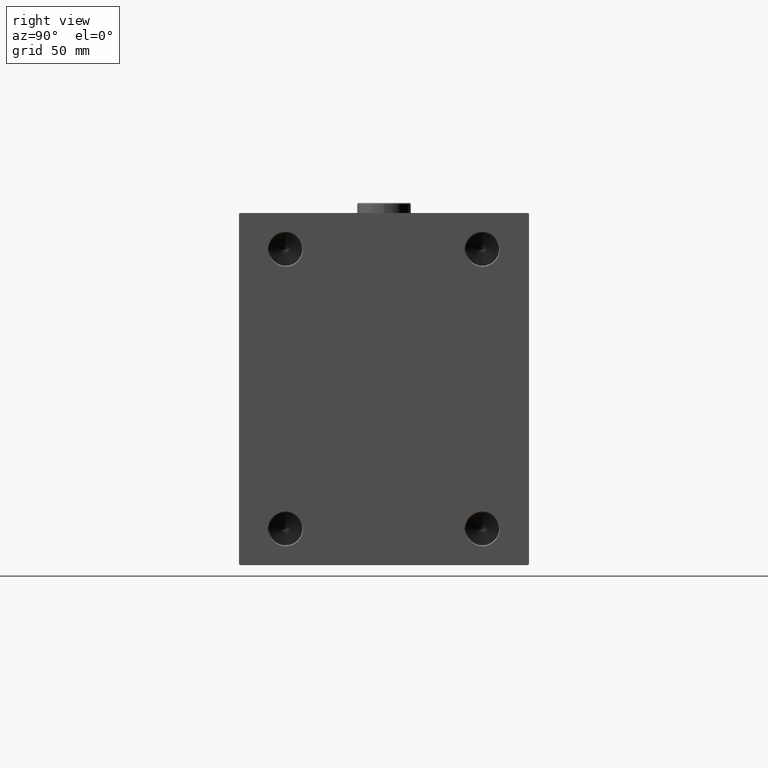
[diagram: clean part render]
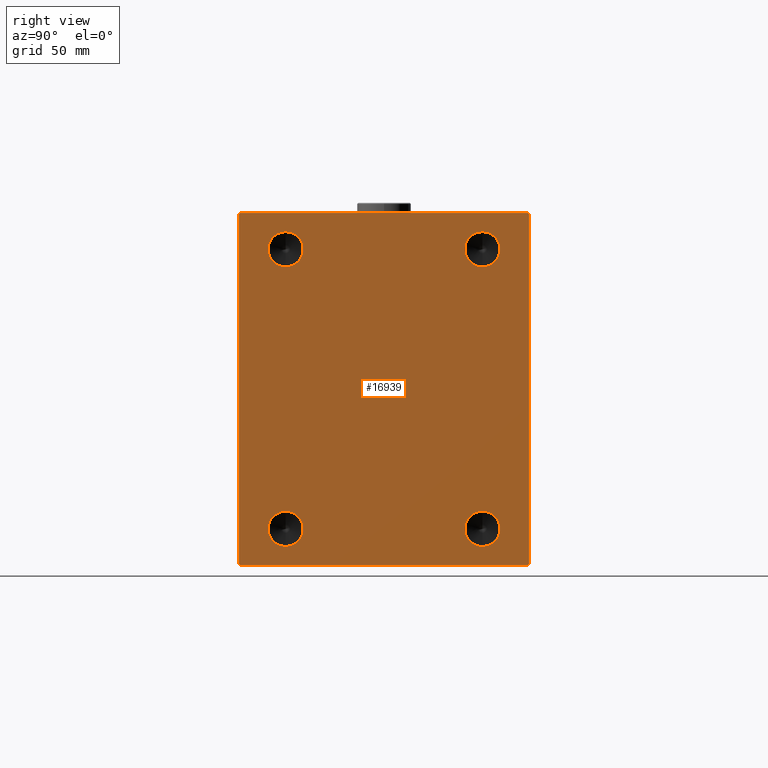
[diagram: same view with one face highlighted and labeled with its STEP entity id]
A machine part, right view. The second image highlights one B-rep face of the part: STEP entity #16939.
In plain terms, the highlighted planar face has unit normal (1, 0, 0).
Its self-contained STEP definition (entity closure, byte-faithful):
#275 = CARTESIAN_POINT ( 'NONE',  ( 185.0000000000000000, -47.50000000000000000, 58.99999999999997158 ) ) ;
#325 = FACE_BOUND ( 'NONE', #21738, .T. ) ;
#710 = EDGE_CURVE ( 'NONE', #22719, #43321, #39456, .T. ) ;
#868 = EDGE_CURVE ( 'NONE', #2538, #43721, #6301, .T. ) ;
#1015 = DIRECTION ( 'NONE',  ( 0.000000000000000000, 0.000000000000000000, -1.000000000000000000 ) ) ;
#1037 = DIRECTION ( 'NONE',  ( 1.000000000000000000, -0.000000000000000000, -0.000000000000000000 ) ) ;
#1204 = VERTEX_POINT ( 'NONE', #25606 ) ;
#1505 = CARTESIAN_POINT ( 'NONE',  ( 185.0000000000000000, -77.25000000000292744, -77.24999999999650413 ) ) ;
#1670 = VERTEX_POINT ( 'NONE', #30982 ) ;
#1870 = LINE ( 'NONE', #47128, #24015 ) ;
#1943 = LINE ( 'NONE', #35274, #28924 ) ;
#1977 = EDGE_LOOP ( 'NONE', ( #15968, #22177, #20051, #42815, #16108, #17164, #7569, #17387 ) ) ;
#1981 = VECTOR ( 'NONE', #2870, 1000.000000000000000 ) ;
#2402 = VERTEX_POINT ( 'NONE', #31312 ) ;
#2508 = CARTESIAN_POINT ( 'NONE',  ( 185.0000000000000000, 70.00000000000000000, 84.50000000000008527 ) ) ;
#2538 = VERTEX_POINT ( 'NONE', #3475 ) ;
#2633 = CARTESIAN_POINT ( 'NONE',  ( 185.0000000000000000, 77.24999999999712941, -77.25000000000355271 ) ) ;
#2670 = DIRECTION ( 'NONE',  ( 0.000000000000000000, 0.000000000000000000, -1.000000000000000000 ) ) ;
#2854 = CARTESIAN_POINT ( 'NONE',  ( 185.0000000000000000, -47.50000000000000000, -59.00000000000000000 ) ) ;
#2870 = DIRECTION ( 'NONE',  ( -0.000000000000000000, 0.7071067811865769936, 0.7071067811865181518 ) ) ;
#2984 = VERTEX_POINT ( 'NONE', #42513 ) ;
#3425 = EDGE_CURVE ( 'NONE', #43321, #22719, #24224, .T. ) ;
#3475 = CARTESIAN_POINT ( 'NONE',  ( 185.0000000000000000, 69.50000000000005684, 85.00000000000001421 ) ) ;
#3581 = VECTOR ( 'NONE', #42946, 1000.000000000000000 ) ;
#4050 = EDGE_CURVE ( 'NONE', #40222, #37802, #28320, .T. ) ;
#4180 = EDGE_CURVE ( 'NONE', #37167, #2402, #25738, .T. ) ;
#5647 = AXIS2_PLACEMENT_3D ( 'NONE', #30783, #45406, #9212 ) ;
#5681 = ORIENTED_EDGE ( 'NONE', *, *, #4180, .F. ) ;
#6151 = DIRECTION ( 'NONE',  ( 1.000000000000000000, -0.000000000000000000, -0.000000000000000000 ) ) ;
#6301 = LINE ( 'NONE', #14865, #34876 ) ;
#6391 = ORIENTED_EDGE ( 'NONE', *, *, #710, .F. ) ;
#6636 = EDGE_CURVE ( 'NONE', #21917, #7199, #26612, .T. ) ;
#6980 = CARTESIAN_POINT ( 'NONE',  ( 185.0000000000000000, -70.00000000000000000, -85.00000000000000000 ) ) ;
#7199 = VERTEX_POINT ( 'NONE', #37276 ) ;
#7534 = EDGE_CURVE ( 'NONE', #11311, #38430, #9018, .T. ) ;
#7569 = ORIENTED_EDGE ( 'NONE', *, *, #18831, .T. ) ;
#7725 = EDGE_CURVE ( 'NONE', #2984, #40222, #27606, .T. ) ;
#7744 = FACE_BOUND ( 'NONE', #43342, .T. ) ;
#8451 = DIRECTION ( 'NONE',  ( -0.000000000000000000, 0.7071067811865181518, -0.7071067811865769936 ) ) ;
#8729 = EDGE_CURVE ( 'NONE', #1670, #2984, #43871, .T. ) ;
#8779 = ORIENTED_EDGE ( 'NONE', *, *, #7534, .F. ) ;
#9018 = CIRCLE ( 'NONE', #16680, 8.500000000000035527 ) ;
#9212 = DIRECTION ( 'NONE',  ( 0.000000000000000000, 0.000000000000000000, -1.000000000000000000 ) ) ;
#10299 = LINE ( 'NONE', #43849, #45217 ) ;
#11017 = DIRECTION ( 'NONE',  ( 0.000000000000000000, 0.000000000000000000, -1.000000000000000000 ) ) ;
#11200 = AXIS2_PLACEMENT_3D ( 'NONE', #14383, #29008, #45950 ) ;
#11311 = VERTEX_POINT ( 'NONE', #40379 ) ;
#11800 = DIRECTION ( 'NONE',  ( 1.000000000000000000, -0.000000000000000000, -0.000000000000000000 ) ) ;
#12755 = DIRECTION ( 'NONE',  ( 0.000000000000000000, 0.000000000000000000, -1.000000000000000000 ) ) ;
#14340 = AXIS2_PLACEMENT_3D ( 'NONE', #20881, #29646, #2670 ) ;
#14383 = CARTESIAN_POINT ( 'NONE',  ( 185.0000000000000000, -47.50000000000000000, 67.49999999999998579 ) ) ;
#14865 = CARTESIAN_POINT ( 'NONE',  ( 185.0000000000000000, 70.00000000000000000, 85.00000000000001421 ) ) ;
#15968 = ORIENTED_EDGE ( 'NONE', *, *, #868, .T. ) ;
#16108 = ORIENTED_EDGE ( 'NONE', *, *, #4050, .T. ) ;
#16121 = ORIENTED_EDGE ( 'NONE', *, *, #6636, .F. ) ;
#16346 = CARTESIAN_POINT ( 'NONE',  ( 185.0000000000000000, 47.50000000000000000, -67.50000000000001421 ) ) ;
#16680 = AXIS2_PLACEMENT_3D ( 'NONE', #30010, #1037, #36976 ) ;
#16765 = LINE ( 'NONE', #2633, #1981 ) ;
#16939 = ADVANCED_FACE ( 'NONE', ( #325, #28831, #7744, #39874, #29779 ), #21638, .T. ) ;
#17164 = ORIENTED_EDGE ( 'NONE', *, *, #32280, .T. ) ;
#17387 = ORIENTED_EDGE ( 'NONE', *, *, #26919, .T. ) ;
#18831 = EDGE_CURVE ( 'NONE', #1204, #22395, #10299, .T. ) ;
#18859 = EDGE_LOOP ( 'NONE', ( #19570, #5681 ) ) ;
#19323 = CARTESIAN_POINT ( 'NONE',  ( 185.0000000000000000, 47.50000000000000000, 76.00000000000001421 ) ) ;
#19570 = ORIENTED_EDGE ( 'NONE', *, *, #23044, .F. ) ;
#20051 = ORIENTED_EDGE ( 'NONE', *, *, #8729, .T. ) ;
#20264 = ORIENTED_EDGE ( 'NONE', *, *, #41434, .F. ) ;
#20282 = CARTESIAN_POINT ( 'NONE',  ( 185.0000000000000000, 47.50000000000000000, -76.00000000000004263 ) ) ;
#20692 = AXIS2_PLACEMENT_3D ( 'NONE', #21871, #36512, #44409 ) ;
#20759 = DIRECTION ( 'NONE',  ( 0.000000000000000000, 0.000000000000000000, -1.000000000000000000 ) ) ;
#20881 = CARTESIAN_POINT ( 'NONE',  ( 185.0000000000000000, -47.50000000000000000, -67.50000000000001421 ) ) ;
#21332 = CARTESIAN_POINT ( 'NONE',  ( 185.0000000000000000, 69.50000000000000000, -85.00000000000000000 ) ) ;
#21342 = DIRECTION ( 'NONE',  ( 0.000000000000000000, -8.163404592832031500E-17, 1.000000000000000000 ) ) ;
#21638 = PLANE ( 'NONE',  #20692 ) ;
#21738 = EDGE_LOOP ( 'NONE', ( #20264, #8779 ) ) ;
#21871 = CARTESIAN_POINT ( 'NONE',  ( 185.0000000000000000, 0.000000000000000000, 0.000000000000000000 ) ) ;
#21917 = VERTEX_POINT ( 'NONE', #2854 ) ;
#22177 = ORIENTED_EDGE ( 'NONE', *, *, #37850, .T. ) ;
#22395 = VERTEX_POINT ( 'NONE', #2508 ) ;
#22719 = VERTEX_POINT ( 'NONE', #20282 ) ;
#22805 = DIRECTION ( 'NONE',  ( 1.000000000000000000, -0.000000000000000000, -0.000000000000000000 ) ) ;
#23044 = EDGE_CURVE ( 'NONE', #2402, #37167, #33999, .T. ) ;
#23601 = EDGE_CURVE ( 'NONE', #7199, #21917, #45428, .T. ) ;
#24015 = VECTOR ( 'NONE', #28908, 999.9999999999998863 ) ;
#24224 = CIRCLE ( 'NONE', #31871, 8.500000000000035527 ) ;
#24332 = CARTESIAN_POINT ( 'NONE',  ( 185.0000000000000000, -69.50000000000000000, 84.99999999999998579 ) ) ;
#24600 = DIRECTION ( 'NONE',  ( 0.000000000000000000, 0.000000000000000000, -1.000000000000000000 ) ) ;
#25606 = CARTESIAN_POINT ( 'NONE',  ( 185.0000000000000000, 70.00000000000001421, -84.50000000000002842 ) ) ;
#25738 = CIRCLE ( 'NONE', #11200, 8.500000000000035527 ) ;
#25912 = VECTOR ( 'NONE', #11017, 1000.000000000000000 ) ;
#26612 = CIRCLE ( 'NONE', #14340, 8.500000000000035527 ) ;
#26769 = EDGE_LOOP ( 'NONE', ( #32958, #6391 ) ) ;
#26919 = EDGE_CURVE ( 'NONE', #22395, #2538, #1870, .T. ) ;
#27606 = LINE ( 'NONE', #1505, #38914 ) ;
#28320 = LINE ( 'NONE', #6980, #3581 ) ;
#28785 = DIRECTION ( 'NONE',  ( 0.000000000000000000, -1.000000000000000000, -1.982541115402065110E-16 ) ) ;
#28831 = FACE_BOUND ( 'NONE', #18859, .T. ) ;
#28908 = DIRECTION ( 'NONE',  ( -0.000000000000000000, -0.7071067811865574537, 0.7071067811865376918 ) ) ;
#28924 = VECTOR ( 'NONE', #31178, 1000.000000000000000 ) ;
#29008 = DIRECTION ( 'NONE',  ( 1.000000000000000000, -0.000000000000000000, -0.000000000000000000 ) ) ;
#29646 = DIRECTION ( 'NONE',  ( 1.000000000000000000, -0.000000000000000000, -0.000000000000000000 ) ) ;
#29779 = FACE_OUTER_BOUND ( 'NONE', #1977, .T. ) ;
#30010 = CARTESIAN_POINT ( 'NONE',  ( 185.0000000000000000, 47.50000000000000000, 67.49999999999998579 ) ) ;
#30783 = CARTESIAN_POINT ( 'NONE',  ( 185.0000000000000000, -47.50000000000000000, 67.49999999999998579 ) ) ;
#30982 = CARTESIAN_POINT ( 'NONE',  ( 185.0000000000000000, -70.00000000000000000, 84.50000000000001421 ) ) ;
#31178 = DIRECTION ( 'NONE',  ( 0.000000000000000000, -0.7071067811865671127, -0.7071067811865279218 ) ) ;
#31312 = CARTESIAN_POINT ( 'NONE',  ( 185.0000000000000000, -47.50000000000000000, 76.00000000000001421 ) ) ;
#31871 = AXIS2_PLACEMENT_3D ( 'NONE', #39928, #46404, #24600 ) ;
#32280 = EDGE_CURVE ( 'NONE', #37802, #1204, #16765, .T. ) ;
#32958 = ORIENTED_EDGE ( 'NONE', *, *, #3425, .F. ) ;
#33999 = CIRCLE ( 'NONE', #5647, 8.500000000000035527 ) ;
#34876 = VECTOR ( 'NONE', #28785, 1000.000000000000000 ) ;
#35143 = CARTESIAN_POINT ( 'NONE',  ( 185.0000000000000000, -69.50000000000002842, -85.00000000000000000 ) ) ;
#35274 = CARTESIAN_POINT ( 'NONE',  ( 185.0000000000000000, -77.24999999999806732, 77.25000000000234479 ) ) ;
#36409 = AXIS2_PLACEMENT_3D ( 'NONE', #16346, #11800, #12755 ) ;
#36457 = CARTESIAN_POINT ( 'NONE',  ( 185.0000000000000000, -70.00000000000000000, 84.99999999999998579 ) ) ;
#36512 = DIRECTION ( 'NONE',  ( 1.000000000000000000, 0.000000000000000000, 0.000000000000000000 ) ) ;
#36976 = DIRECTION ( 'NONE',  ( 0.000000000000000000, 0.000000000000000000, -1.000000000000000000 ) ) ;
#37167 = VERTEX_POINT ( 'NONE', #275 ) ;
#37276 = CARTESIAN_POINT ( 'NONE',  ( 185.0000000000000000, -47.50000000000000000, -76.00000000000004263 ) ) ;
#37802 = VERTEX_POINT ( 'NONE', #21332 ) ;
#37850 = EDGE_CURVE ( 'NONE', #43721, #1670, #1943, .T. ) ;
#38313 = CARTESIAN_POINT ( 'NONE',  ( 185.0000000000000000, 47.50000000000000000, -59.00000000000000000 ) ) ;
#38430 = VERTEX_POINT ( 'NONE', #19323 ) ;
#38582 = AXIS2_PLACEMENT_3D ( 'NONE', #44854, #22805, #1015 ) ;
#38914 = VECTOR ( 'NONE', #8451, 1000.000000000000000 ) ;
#38987 = CARTESIAN_POINT ( 'NONE',  ( 185.0000000000000000, 47.50000000000000000, 67.49999999999998579 ) ) ;
#39456 = CIRCLE ( 'NONE', #36409, 8.500000000000035527 ) ;
#39648 = CIRCLE ( 'NONE', #42731, 8.500000000000035527 ) ;
#39874 = FACE_BOUND ( 'NONE', #26769, .T. ) ;
#39928 = CARTESIAN_POINT ( 'NONE',  ( 185.0000000000000000, 47.50000000000000000, -67.50000000000001421 ) ) ;
#40222 = VERTEX_POINT ( 'NONE', #35143 ) ;
#40379 = CARTESIAN_POINT ( 'NONE',  ( 185.0000000000000000, 47.50000000000000000, 58.99999999999997158 ) ) ;
#41434 = EDGE_CURVE ( 'NONE', #38430, #11311, #39648, .T. ) ;
#42242 = ORIENTED_EDGE ( 'NONE', *, *, #23601, .F. ) ;
#42513 = CARTESIAN_POINT ( 'NONE',  ( 185.0000000000000000, -70.00000000000000000, -84.49999999999998579 ) ) ;
#42731 = AXIS2_PLACEMENT_3D ( 'NONE', #38987, #6151, #20759 ) ;
#42815 = ORIENTED_EDGE ( 'NONE', *, *, #7725, .T. ) ;
#42946 = DIRECTION ( 'NONE',  ( 0.000000000000000000, 1.000000000000000000, 0.000000000000000000 ) ) ;
#43321 = VERTEX_POINT ( 'NONE', #38313 ) ;
#43342 = EDGE_LOOP ( 'NONE', ( #16121, #42242 ) ) ;
#43721 = VERTEX_POINT ( 'NONE', #24332 ) ;
#43849 = CARTESIAN_POINT ( 'NONE',  ( 185.0000000000000000, 70.00000000000001421, -85.00000000000000000 ) ) ;
#43871 = LINE ( 'NONE', #36457, #25912 ) ;
#44409 = DIRECTION ( 'NONE',  ( 0.000000000000000000, 0.000000000000000000, -1.000000000000000000 ) ) ;
#44854 = CARTESIAN_POINT ( 'NONE',  ( 185.0000000000000000, -47.50000000000000000, -67.50000000000001421 ) ) ;
#45217 = VECTOR ( 'NONE', #21342, 1000.000000000000000 ) ;
#45406 = DIRECTION ( 'NONE',  ( 1.000000000000000000, -0.000000000000000000, -0.000000000000000000 ) ) ;
#45428 = CIRCLE ( 'NONE', #38582, 8.500000000000035527 ) ;
#45950 = DIRECTION ( 'NONE',  ( 0.000000000000000000, 0.000000000000000000, -1.000000000000000000 ) ) ;
#46404 = DIRECTION ( 'NONE',  ( 1.000000000000000000, -0.000000000000000000, -0.000000000000000000 ) ) ;
#47128 = CARTESIAN_POINT ( 'NONE',  ( 185.0000000000000000, 77.24999999999907629, 77.25000000000122213 ) ) ;